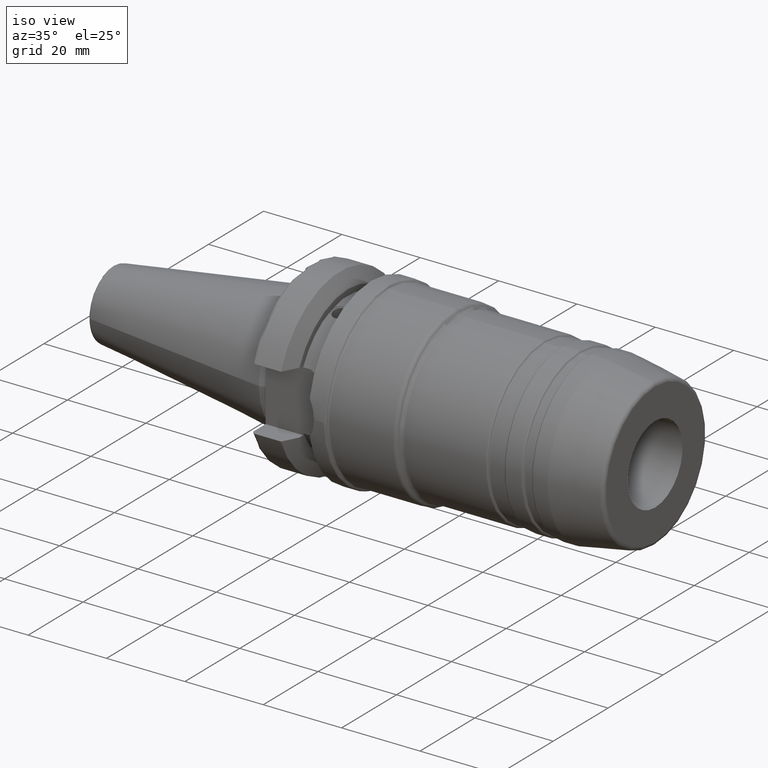
[diagram: clean part render]
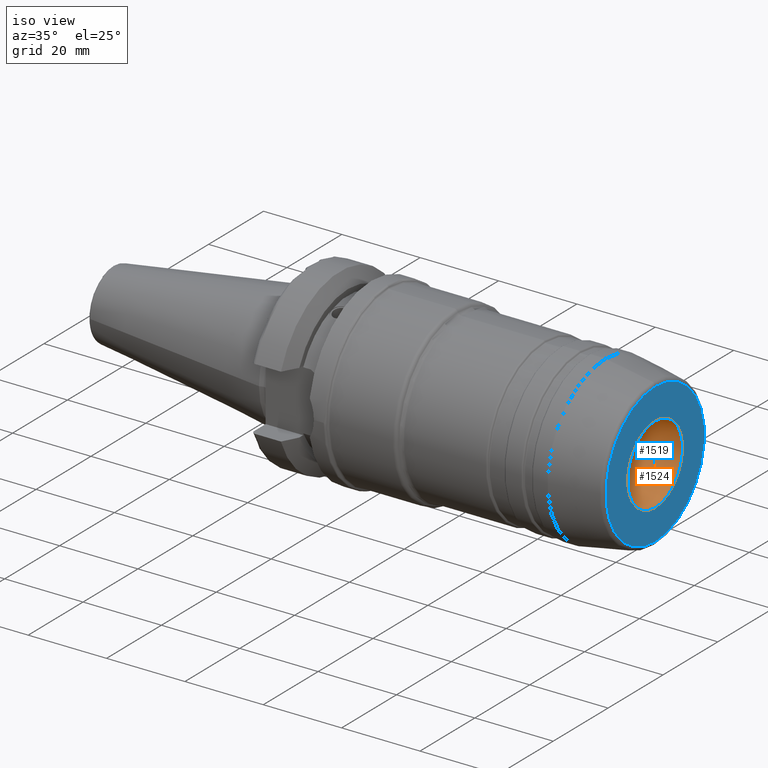
[diagram: same view with the hole feature highlighted: cylindrical wall and planar end face, labeled with their STEP entity ids]
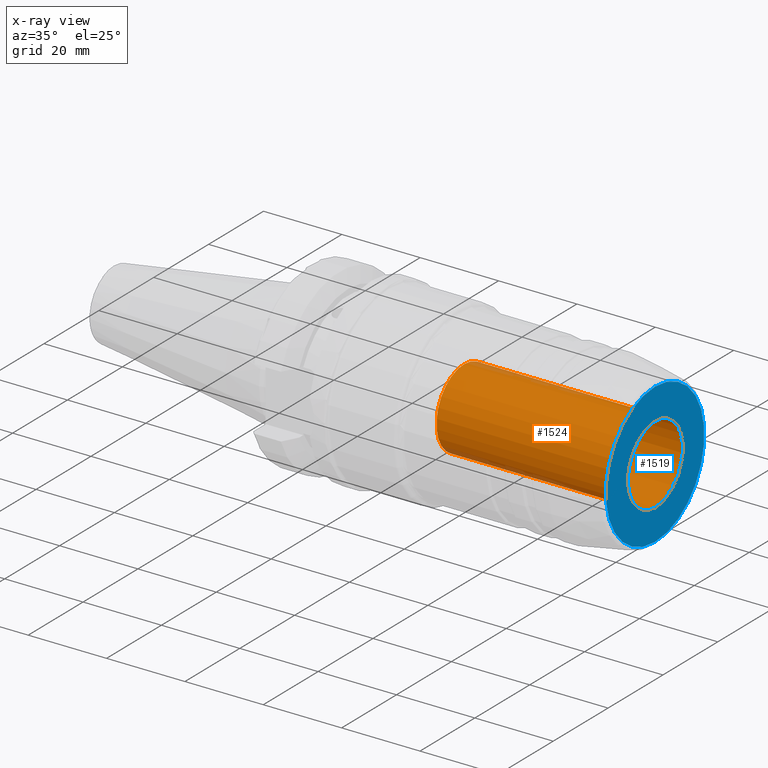
[diagram: x-ray of the same camera — body ghosted, the hole faces saturated]
A machine part, iso view. The highlighted faces form one hole feature of diameter 20 mm: the cylindrical wall (entity #1524, orange) and its adjacent planar end face (entity #1519, blue) — they share a circular edge in the B-rep.
The next image is the same camera in x-ray (body ghosted, the hole faces saturated) — the bore reads through the body.
Wall:
#134=LINE('',#2570,#209);
#209=VECTOR('',#2004,9.99999999999999);
#276=CYLINDRICAL_SURFACE('',#1687,9.99999999999999);
#336=FACE_OUTER_BOUND('',#433,.T.);
#433=EDGE_LOOP('',(#1124,#1125,#1126,#1127));
#546=CIRCLE('',#1676,10.);
#553=CIRCLE('',#1688,9.99999999999998);
#642=VERTEX_POINT('',#2461);
#654=VERTEX_POINT('',#2569);
#812=EDGE_CURVE('',#642,#642,#546,.T.);
#829=EDGE_CURVE('',#642,#654,#134,.T.);
#830=EDGE_CURVE('',#654,#654,#553,.T.);
#1124=ORIENTED_EDGE('',*,*,#812,.T.);
#1125=ORIENTED_EDGE('',*,*,#829,.T.);
#1126=ORIENTED_EDGE('',*,*,#830,.F.);
#1127=ORIENTED_EDGE('',*,*,#829,.F.);
#1524=ADVANCED_FACE('',(#336),#276,.F.);
#1676=AXIS2_PLACEMENT_3D('',#2462,#1976,#1977);
#1687=AXIS2_PLACEMENT_3D('',#2568,#2002,#2003);
#1688=AXIS2_PLACEMENT_3D('',#2571,#2005,#2006);
#1976=DIRECTION('center_axis',(1.,0.,0.));
#1977=DIRECTION('ref_axis',(0.,0.,-1.));
#2002=DIRECTION('center_axis',(1.,0.,0.));
#2003=DIRECTION('ref_axis',(0.,0.,-1.));
#2004=DIRECTION('',(-1.,0.,0.));
#2005=DIRECTION('center_axis',(1.,0.,0.));
#2006=DIRECTION('ref_axis',(0.,0.,-1.));
#2461=CARTESIAN_POINT('',(90.,-1.22464679914735E-15,9.99999999999999));
#2462=CARTESIAN_POINT('Origin',(90.,0.,0.));
#2568=CARTESIAN_POINT('Origin',(65.6,0.,0.));
#2569=CARTESIAN_POINT('',(41.2,-1.22464679914735E-15,9.99999999999999));
#2570=CARTESIAN_POINT('',(65.6,-1.22464679914735E-15,9.99999999999999));
#2571=CARTESIAN_POINT('Origin',(41.2,0.,0.));
End face:
#70=FACE_BOUND('',#427,.T.);
#81=PLANE('',#1675);
#331=FACE_OUTER_BOUND('',#426,.T.);
#426=EDGE_LOOP('',(#1096));
#427=EDGE_LOOP('',(#1097));
#542=CIRCLE('',#1670,17.9109003688227);
#546=CIRCLE('',#1676,10.);
#639=VERTEX_POINT('',#2451);
#642=VERTEX_POINT('',#2461);
#807=EDGE_CURVE('',#639,#639,#542,.T.);
#812=EDGE_CURVE('',#642,#642,#546,.T.);
#1096=ORIENTED_EDGE('',*,*,#807,.F.);
#1097=ORIENTED_EDGE('',*,*,#812,.F.);
#1519=ADVANCED_FACE('',(#331,#70),#81,.T.);
#1670=AXIS2_PLACEMENT_3D('',#2452,#1963,#1964);
#1675=AXIS2_PLACEMENT_3D('',#2460,#1974,#1975);
#1676=AXIS2_PLACEMENT_3D('',#2462,#1976,#1977);
#1963=DIRECTION('center_axis',(-1.,0.,0.));
#1964=DIRECTION('ref_axis',(0.,1.22464679914735E-16,1.));
#1974=DIRECTION('center_axis',(1.,0.,0.));
#1975=DIRECTION('ref_axis',(0.,0.,-1.));
#1976=DIRECTION('center_axis',(1.,0.,0.));
#1977=DIRECTION('ref_axis',(0.,0.,-1.));
#2451=CARTESIAN_POINT('',(90.,-2.19345268065259E-15,17.9109003688227));
#2452=CARTESIAN_POINT('Origin',(90.,0.,0.));
#2460=CARTESIAN_POINT('Origin',(90.,0.,-10.));
#2461=CARTESIAN_POINT('',(90.,-1.22464679914735E-15,9.99999999999999));
#2462=CARTESIAN_POINT('Origin',(90.,0.,0.));